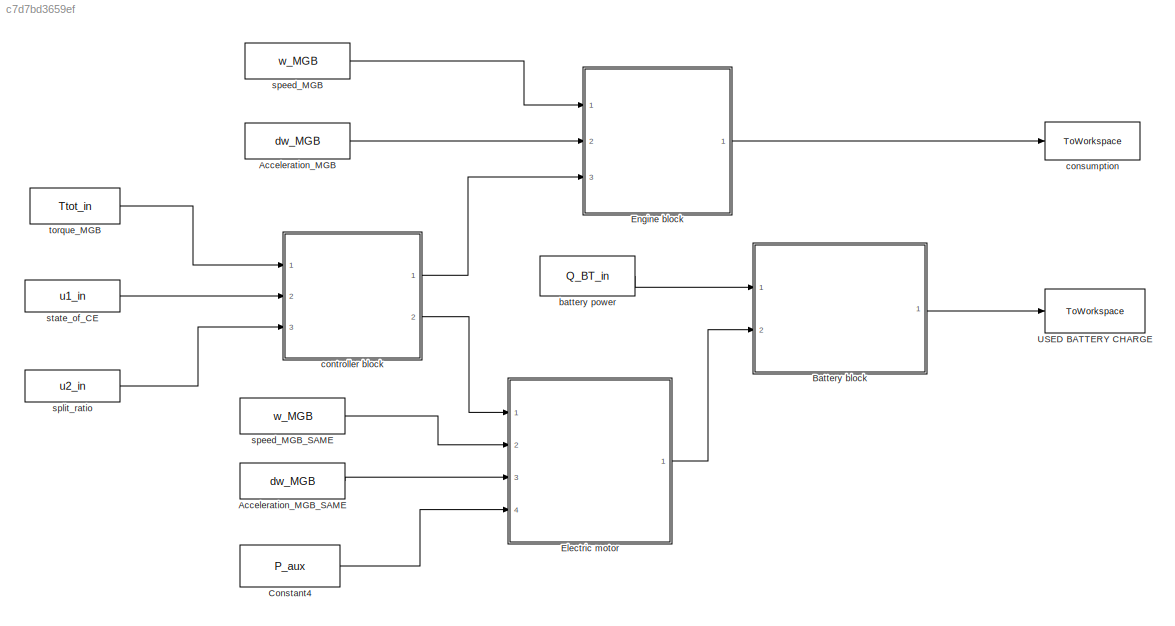
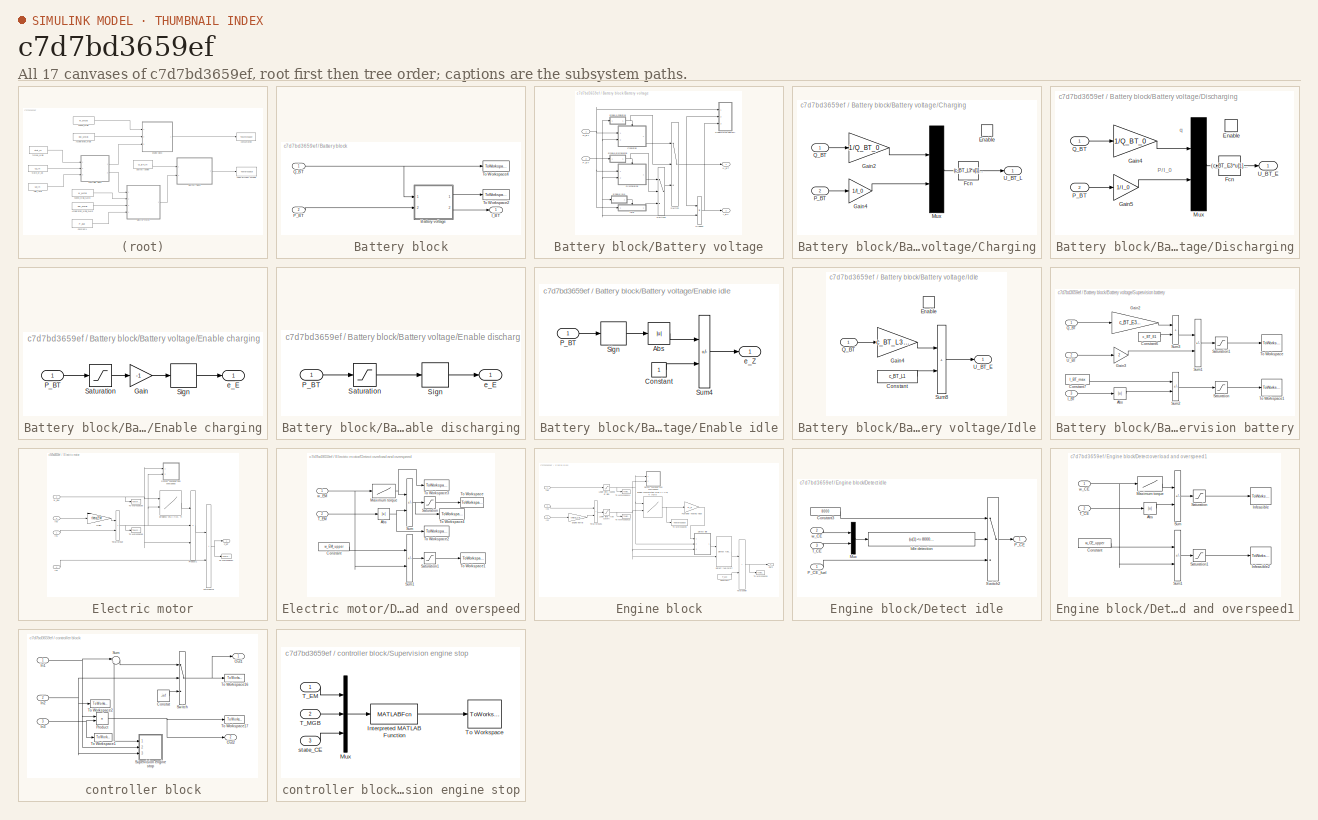
[diagram: thumbnail index - all 17 canvases of the model, root first then tree order]
MODEL slx_c7d7bd3659ef
KIND model
CONFIG AbsTol = auto
CONFIG EnableMultiTasking = off
CONFIG FixedStep = 1
CONFIG MaxStep = auto
CONFIG MinStep = auto
CONFIG RelTol = 1e-3
CONFIG SampleTimeConstraint = Unconstrained
CONFIG Solver = FixedStepAuto
CONFIG SolverName = FixedStepAuto
CONFIG StartTime = 0.0
CONFIG StopTime = 0
BLOCK [Constant] Acceleration_MGB
  Value = dw_MGB
BLOCK [Constant] Acceleration_MGB_SAME
  Value = dw_MGB
BLOCK [SubSystem] Battery block
  Ports = [2, 1]
  RequestExecContextInheritance = off
BLOCK [SubSystem] Battery block/Battery voltage
  AncestorBlock = qss_tb_library/Energy Buffer/Battery/Battery voltage
  Ports = [2, 2]
  RequestExecContextInheritance = off
BLOCK [SubSystem] Battery block/Battery voltage/Charging
  Ports = [2, 1, 1]
  RequestExecContextInheritance = off
BLOCK [EnablePort] Battery block/Battery voltage/Charging/Enable
  Ports = []
BLOCK [Fcn] Battery block/Battery voltage/Charging/Fcn
  Expr = (c_BT_L3*u[1]+c_BT_L1+sqrt((c_BT_L3*u[1]+c_BT_L1)^2+4*(c_BT_L4*u[1]+c_BT_L2)*(-u[2])))/2
BLOCK [Gain] Battery block/Battery voltage/Charging/Gain2
  Gain = 1/Q_BT_0
  NameLocation = top
  OutDataTypeStr = Inherit: Same as input
  ParamDataTypeStr = Inherit: Same as input
  SaturateOnIntegerOverflow = on
BLOCK [Gain] Battery block/Battery voltage/Charging/Gain4
  Gain = 1/I_0
  NameLocation = top
  OutDataTypeStr = Inherit: Same as input
  ParamDataTypeStr = Inherit: Same as input
  SaturateOnIntegerOverflow = on
BLOCK [Mux] Battery block/Battery voltage/Charging/Mux
  Inputs = 2
  Ports = [2, 1]
BLOCK [Inport] Battery block/Battery voltage/Charging/P_BT
  Port = 2
BLOCK [Inport] Battery block/Battery voltage/Charging/Q_BT
BLOCK [Outport] Battery block/Battery voltage/Charging/U_BT_L
  InitialOutput = 0
  VectorParamsAs1DForOutWhenUnconnected = off
BLOCK [SubSystem] Battery block/Battery voltage/Discharging
  Ports = [2, 1, 1]
  RequestExecContextInheritance = off
BLOCK [EnablePort] Battery block/Battery voltage/Discharging/Enable
  Ports = []
BLOCK [Fcn] Battery block/Battery voltage/Discharging/Fcn
  Expr = (c_BT_E3*u[1]+c_BT_E1+sqrt((c_BT_E3*u[1]+c_BT_E1)^2+4*(c_BT_E4*u[1]+c_BT_E2)*(-u[2])))/2
BLOCK [Gain] Battery block/Battery voltage/Discharging/Gain4
  Gain = 1/Q_BT_0
  NameLocation = top
  OutDataTypeStr = Inherit: Same as input
  ParamDataTypeStr = Inherit: Same as input
  SaturateOnIntegerOverflow = on
BLOCK [Gain] Battery block/Battery voltage/Discharging/Gain5
  Gain = 1/I_0
  NameLocation = top
  OutDataTypeStr = Inherit: Same as input
  ParamDataTypeStr = Inherit: Same as input
  SaturateOnIntegerOverflow = on
BLOCK [Mux] Battery block/Battery voltage/Discharging/Mux
  Inputs = 2
  Ports = [2, 1]
BLOCK [Inport] Battery block/Battery voltage/Discharging/P_BT
  Port = 2
BLOCK [Inport] Battery block/Battery voltage/Discharging/Q_BT
BLOCK [Outport] Battery block/Battery voltage/Discharging/U_BT_E
  InitialOutput = 0
  VectorParamsAs1DForOutWhenUnconnected = off
BLOCK [SubSystem] Battery block/Battery voltage/Enable charging
  NameLocation = top
  Ports = [1, 1]
  RequestExecContextInheritance = off
BLOCK [Gain] Battery block/Battery voltage/Enable charging/Gain
  Gain = -1
  OutDataTypeStr = Inherit: Same as input
  ParamDataTypeStr = Inherit: Same as input
  SaturateOnIntegerOverflow = on
BLOCK [Inport] Battery block/Battery voltage/Enable charging/P_BT
BLOCK [Saturate] Battery block/Battery voltage/Enable charging/Saturation
  LowerLimit = -inf
  NameLocation = top
  UpperLimit = 0
BLOCK [Signum] Battery block/Battery voltage/Enable charging/Sign
BLOCK [Outport] Battery block/Battery voltage/Enable charging/e_E
  InitialOutput = 0
  VectorParamsAs1DForOutWhenUnconnected = off
BLOCK [SubSystem] Battery block/Battery voltage/Enable discharging
  NameLocation = top
  Ports = [1, 1]
  RequestExecContextInheritance = off
BLOCK [Inport] Battery block/Battery voltage/Enable discharging/P_BT
BLOCK [Saturate] Battery block/Battery voltage/Enable discharging/Saturation
  LowerLimit = 0
  UpperLimit = inf
BLOCK [Signum] Battery block/Battery voltage/Enable discharging/Sign
BLOCK [Outport] Battery block/Battery voltage/Enable discharging/e_E
  InitialOutput = 0
  VectorParamsAs1DForOutWhenUnconnected = off
BLOCK [SubSystem] Battery block/Battery voltage/Enable idle
  NameLocation = top
  Ports = [1, 1]
  RequestExecContextInheritance = off
BLOCK [Abs] Battery block/Battery voltage/Enable idle/Abs
BLOCK [Constant] Battery block/Battery voltage/Enable idle/Constant
BLOCK [Inport] Battery block/Battery voltage/Enable idle/P_BT
BLOCK [Signum] Battery block/Battery voltage/Enable idle/Sign
BLOCK [Sum] Battery block/Battery voltage/Enable idle/Sum4
  IconShape = rectangular
  InputSameDT = on
  Inputs = -+
  OutDataTypeStr = Inherit: Same as first input
  Ports = [2, 1]
  SaturateOnIntegerOverflow = on
BLOCK [Outport] Battery block/Battery voltage/Enable idle/e_Z
  InitialOutput = 0
  VectorParamsAs1DForOutWhenUnconnected = off
BLOCK [Outport] Battery block/Battery voltage/I_BT
  InitialOutput = 0
  Port = 2
  VectorParamsAs1DForOutWhenUnconnected = off
BLOCK [SubSystem] Battery block/Battery voltage/Idle
  Ports = [1, 1, 1]
  RequestExecContextInheritance = off
BLOCK [Constant] Battery block/Battery voltage/Idle/Constant
  Value = c_BT_L1
BLOCK [EnablePort] Battery block/Battery voltage/Idle/Enable
  Ports = []
  StatesWhenEnabling = reset
BLOCK [Gain] Battery block/Battery voltage/Idle/Gain4
  Gain = c_BT_L3/Q_BT_0
  NameLocation = top
  OutDataTypeStr = Inherit: Same as input
  ParamDataTypeStr = Inherit: Same as input
  SaturateOnIntegerOverflow = on
BLOCK [Inport] Battery block/Battery voltage/Idle/Q_BT
BLOCK [Sum] Battery block/Battery voltage/Idle/Sum8
  IconShape = rectangular
  InputSameDT = on
  OutDataTypeStr = Inherit: Same as first input
  Ports = [2, 1]
  SaturateOnIntegerOverflow = on
BLOCK [Outport] Battery block/Battery voltage/Idle/U_BT_E
  InitialOutput = 0
  VectorParamsAs1DForOutWhenUnconnected = off
BLOCK [Inport] Battery block/Battery voltage/P_BT
  Port = 2
BLOCK [Product] Battery block/Battery voltage/Product
  InputSameDT = on
  Inputs = /*
  OutDataTypeStr = Inherit: Same as first input
  Ports = [2, 1]
  RndMeth = Zero
  SaturateOnIntegerOverflow = on
BLOCK [Inport] Battery block/Battery voltage/Q_BT
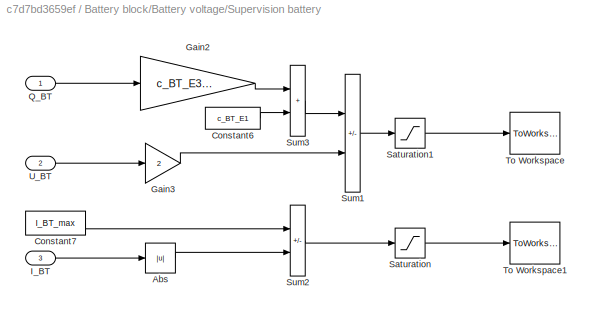
BLOCK [SubSystem] Battery block/Battery voltage/Supervision battery
  Ports = [3]
  RequestExecContextInheritance = off
BLOCK [Abs] Battery block/Battery voltage/Supervision battery/Abs
BLOCK [Constant] Battery block/Battery voltage/Supervision battery/Constant6
  Value = c_BT_E1
BLOCK [Constant] Battery block/Battery voltage/Supervision battery/Constant7
  Value = I_BT_max
BLOCK [Gain] Battery block/Battery voltage/Supervision battery/Gain2
  Gain = c_BT_E3/Q_BT_0
  NameLocation = top
  OutDataTypeStr = Inherit: Same as input
  ParamDataTypeStr = Inherit: Same as input
  SaturateOnIntegerOverflow = on
BLOCK [Gain] Battery block/Battery voltage/Supervision battery/Gain3
  Gain = 2
  NameLocation = top
  OutDataTypeStr = Inherit: Same as input
  ParamDataTypeStr = Inherit: Same as input
  SaturateOnIntegerOverflow = on
BLOCK [Inport] Battery block/Battery voltage/Supervision battery/I_BT
  Port = 3
BLOCK [Inport] Battery block/Battery voltage/Supervision battery/Q_BT
BLOCK [Saturate] Battery block/Battery voltage/Supervision battery/Saturation
  LowerLimit = -inf
  UpperLimit = 0
BLOCK [Saturate] Battery block/Battery voltage/Supervision battery/Saturation1
  LowerLimit = -inf
  UpperLimit = 0
BLOCK [Sum] Battery block/Battery voltage/Supervision battery/Sum1
  IconShape = rectangular
  InputSameDT = on
  Inputs = -+
  OutDataTypeStr = Inherit: Same as first input
  Ports = [2, 1]
  SaturateOnIntegerOverflow = on
BLOCK [Sum] Battery block/Battery voltage/Supervision battery/Sum2
  IconShape = rectangular
  InputSameDT = on
  Inputs = +-
  OutDataTypeStr = Inherit: Same as first input
  Ports = [2, 1]
  SaturateOnIntegerOverflow = on
BLOCK [Sum] Battery block/Battery voltage/Supervision battery/Sum3
  IconShape = rectangular
  InputSameDT = on
  OutDataTypeStr = Inherit: Same as first input
  Ports = [2, 1]
  SaturateOnIntegerOverflow = on
BLOCK [ToWorkspace] Battery block/Battery voltage/Supervision battery/To Workspace
  MaxDataPoints = inf
  Ports = [1]
  SampleTime = -1
  Save2DSignal = 2-D array (concatenate along first dimension)
  VariableName = I6
BLOCK [ToWorkspace] Battery block/Battery voltage/Supervision battery/To Workspace1
  MaxDataPoints = inf
  Ports = [1]
  SampleTime = -1
  Save2DSignal = 2-D array (concatenate along first dimension)
  VariableName = I7
BLOCK [Inport] Battery block/Battery voltage/Supervision battery/U_BT
  Port = 2
BLOCK [Switch] Battery block/Battery voltage/Switch
  Threshold = 0.5
BLOCK [Switch] Battery block/Battery voltage/Switch1
  Threshold = 0.5
BLOCK [Outport] Battery block/Battery voltage/U_BT
  InitialOutput = 0
  VectorParamsAs1DForOutWhenUnconnected = off
BLOCK [Outport] Battery block/I_BT
BLOCK [Inport] Battery block/P_BT
  Port = 2
BLOCK [Inport] Battery block/Q_BT
BLOCK [ToWorkspace] Battery block/To Workspace2
  MaxDataPoints = inf
  Ports = [1]
  SampleTime = -1
  VariableName = U_BT
BLOCK [ToWorkspace] Battery block/To Workspace4
  MaxDataPoints = inf
  Ports = [1]
  SampleTime = -1
  VariableName = Q_BT
BLOCK [Constant] Constant4
  Value = P_aux
BLOCK [SubSystem] Electric motor
  Ports = [4, 1]
  RequestExecContextInheritance = off
BLOCK [SubSystem] Electric motor/Detect overload and overspeed
  AncestorBlock = qss_tb_library/Energy Converter/Electric Motor\n(seminar)/Detect overload\nand overspeed
  Ports = [2]
  RequestExecContextInheritance = off
BLOCK [Abs] Electric motor/Detect overload and overspeed/Abs
BLOCK [Constant] Electric motor/Detect overload and overspeed/Constant
  Value = w_EM_upper
BLOCK [Lookup] Electric motor/Detect overload and overspeed/Maximum torque
  InputValues = w_EM_row
  Table = T_EM_max
BLOCK [Saturate] Electric motor/Detect overload and overspeed/Saturation
  LowerLimit = -inf
  UpperLimit = 0
BLOCK [Saturate] Electric motor/Detect overload and overspeed/Saturation1
  LowerLimit = -inf
  UpperLimit = 0
BLOCK [Sum] Electric motor/Detect overload and overspeed/Sum
  IconShape = rectangular
  InputSameDT = on
  Inputs = +-
  OutDataTypeStr = Inherit: Same as first input
  Ports = [2, 1]
  SaturateOnIntegerOverflow = on
BLOCK [Sum] Electric motor/Detect overload and overspeed/Sum1
  IconShape = rectangular
  InputSameDT = on
  Inputs = +-
  OutDataTypeStr = Inherit: Same as first input
  Ports = [2, 1]
  SaturateOnIntegerOverflow = on
BLOCK [Inport] Electric motor/Detect overload and overspeed/T_EM
  Port = 2
BLOCK [ToWorkspace] Electric motor/Detect overload and overspeed/To Workspace
  FixptAsFi = on
  MaxDataPoints = inf
  Ports = [1]
  SampleTime = -1
  VariableName = I4
BLOCK [ToWorkspace] Electric motor/Detect overload and overspeed/To Workspace1
  MaxDataPoints = inf
  Ports = [1]
  SampleTime = -1
  Save2DSignal = 2-D array (concatenate along first dimension)
  VariableName = I5
BLOCK [ToWorkspace] Electric motor/Detect overload and overspeed/To Workspace2
  MaxDataPoints = inf
  Ports = [1]
  SampleTime = -1
  Save2DSignal = 2-D array (concatenate along first dimension)
  VariableName = a2
BLOCK [ToWorkspace] Electric motor/Detect overload and overspeed/To Workspace3
  MaxDataPoints = inf
  Ports = [1]
  SampleTime = -1
  Save2DSignal = 2-D array (concatenate along first dimension)
  VariableName = a1
BLOCK [ToWorkspace] Electric motor/Detect overload and overspeed/To Workspace4
  MaxDataPoints = inf
  Ports = [1]
  SampleTime = -1
  Save2DSignal = 2-D array (concatenate along first dimension)
  VariableName = a3
BLOCK [Inport] Electric motor/Detect overload and overspeed/w_EM
BLOCK [Lookup2D] Electric motor/Efficiency eta = f(w, T)
  ColumnIndex = T_EM_col
  InputSameDT = off
  RowIndex = w_EM_row
  SaturateOnIntegerOverflow = off
  Table = eta_EM_map
BLOCK [Gain] Electric motor/Gain1
  Gain = theta_EM
  OutDataTypeStr = Inherit: Same as input
  ParamDataTypeStr = Inherit: Same as input
  SaturateOnIntegerOverflow = on
BLOCK [Inport] Electric motor/In1
BLOCK [Inport] Electric motor/In3
  Port = 3
BLOCK [Inport] Electric motor/In4
  Port = 4
BLOCK [Outport] Electric motor/P_BT
BLOCK [Product] Electric motor/Product1
  InputSameDT = on
  Inputs = 3
  OutDataTypeStr = Inherit: Same as first input
  Ports = [3, 1]
  RndMeth = Zero
  SaturateOnIntegerOverflow = on
BLOCK [ToWorkspace] Electric motor/To Workspace5
  MaxDataPoints = inf
  NameLocation = top
  Ports = [1]
  SampleTime = -1
  VariableName = w_EM
BLOCK [ToWorkspace] Electric motor/To Workspace6
  MaxDataPoints = inf
  NameLocation = top
  Ports = [1]
  SampleTime = -1
  VariableName = T_EM
BLOCK [ToWorkspace] Electric motor/To Workspace7
  MaxDataPoints = inf
  NameLocation = top
  Ports = [1]
  SampleTime = -1
  VariableName = Pm_out
BLOCK [Sum] Electric motor/Total power
  IconShape = rectangular
  InputSameDT = on
  OutDataTypeStr = Inherit: Same as first input
  Ports = [2, 1]
  SaturateOnIntegerOverflow = on
BLOCK [Sum] Electric motor/Total torque
  IconShape = rectangular
  InputSameDT = on
  OutDataTypeStr = Inherit: Same as first input
  Ports = [2, 1]
  SaturateOnIntegerOverflow = on
BLOCK [Inport] Electric motor/w_EM
  Port = 2
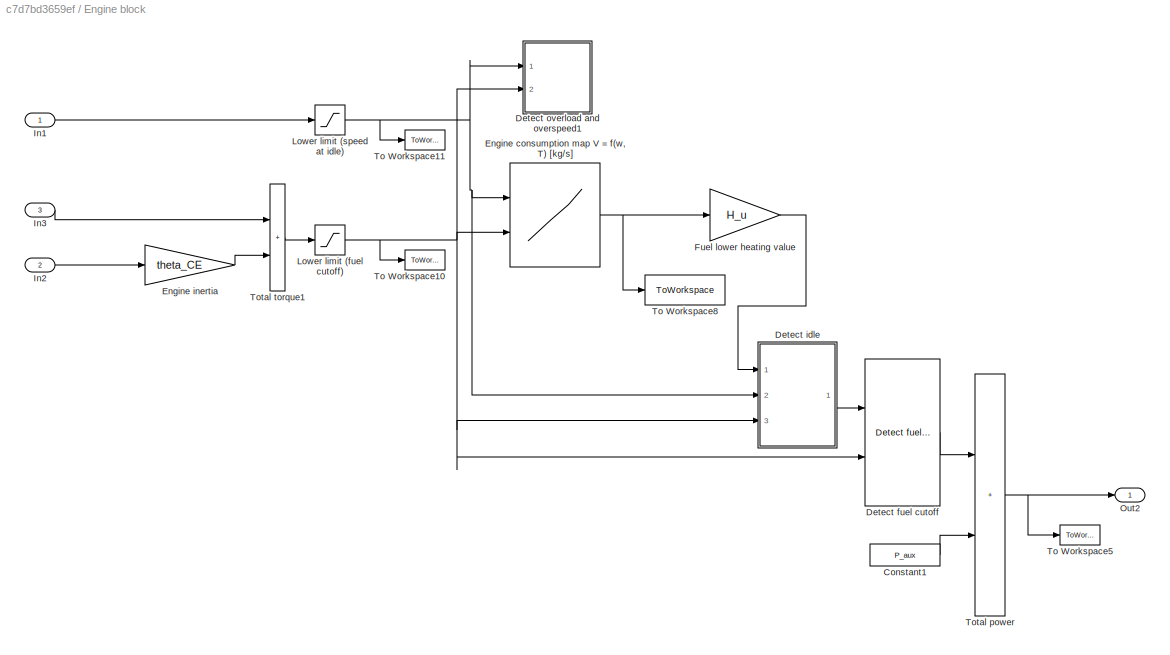
BLOCK [SubSystem] Engine block
  Ports = [3, 1]
  RequestExecContextInheritance = off
BLOCK [Constant] Engine block/Constant1
  Value = P_aux
BLOCK [Reference] Engine block/Detect fuel cutoff  REF=qss_tb_library/Energy Converter/Combustion Engine  (lib defined in mdl_a75e96b0ff2a, mdl_aad2a3137e65)
(consumption map)/Detect fuel cutoff
  Ports = [2, 1]
  SourceBlock = qss_tb_library/Energy Converter/Combustion Engine\n(consumption map)/Detect fuel cutoff
  SourceType = SubSystem
BLOCK [SubSystem] Engine block/Detect idle
  AncestorBlock = qss_tb_library/Energy Converter/Combustion Engine\n(consumption map)/Detect idle
  Ports = [3, 1]
  RequestExecContextInheritance = off
BLOCK [Constant] Engine block/Detect idle/Constant3
  Value = 8000
BLOCK [Fcn] Engine block/Detect idle/Idle detection
  Expr = (u(1) <= 8000) * (u(2) <= 5)
BLOCK [Mux] Engine block/Detect idle/Mux
  DisplayOption = bar
  Inputs = 2
  Ports = [2, 1]
BLOCK [Outport] Engine block/Detect idle/P_CE
  InitialOutput = 0
BLOCK [Inport] Engine block/Detect idle/P_CE_fuel
BLOCK [Switch] Engine block/Detect idle/Switch2
  Threshold = 0.5
BLOCK [Inport] Engine block/Detect idle/T_CE
  Port = 3
BLOCK [Inport] Engine block/Detect idle/w_CE
  Port = 2
BLOCK [SubSystem] Engine block/Detect overload and overspeed1
  AncestorBlock = qss_tb_library/Energy Converter/Combustion Engine\n(consumption map)/Detect overload\nand overspeed
  Ports = [2]
  RequestExecContextInheritance = off
BLOCK [Abs] Engine block/Detect overload and overspeed1/Abs
BLOCK [Constant] Engine block/Detect overload and overspeed1/Constant
  Value = w_CE_upper
BLOCK [ToWorkspace] Engine block/Detect overload and overspeed1/Infeasible
  MaxDataPoints = inf
  Ports = [1]
  SampleTime = -1
  VariableName = I2
BLOCK [ToWorkspace] Engine block/Detect overload and overspeed1/Infeasible2
  MaxDataPoints = inf
  Ports = [1]
  SampleTime = -1
  VariableName = I3
BLOCK [Lookup] Engine block/Detect overload and overspeed1/Maximum torque
  InputValues = w_CE_max
  Table = T_CE_max
BLOCK [Saturate] Engine block/Detect overload and overspeed1/Saturation
  LowerLimit = -inf
  UpperLimit = 0
BLOCK [Saturate] Engine block/Detect overload and overspeed1/Saturation1
  LowerLimit = -inf
  UpperLimit = 0
BLOCK [Sum] Engine block/Detect overload and overspeed1/Sum
  IconShape = rectangular
  InputSameDT = on
  Inputs = +-
  OutDataTypeStr = Inherit: Same as first input
  Ports = [2, 1]
  SaturateOnIntegerOverflow = on
BLOCK [Sum] Engine block/Detect overload and overspeed1/Sum1
  IconShape = rectangular
  InputSameDT = on
  Inputs = +-
  OutDataTypeStr = Inherit: Same as first input
  Ports = [2, 1]
  SaturateOnIntegerOverflow = on
BLOCK [Inport] Engine block/Detect overload and overspeed1/T_CE
  Port = 2
BLOCK [Inport] Engine block/Detect overload and overspeed1/w_CE
BLOCK [Lookup2D] Engine block/Engine consumption map V = f(w, T) [kg//s]
  ColumnIndex = T_CE_col
  InputSameDT = off
  RowIndex = w_CE_row
  SaturateOnIntegerOverflow = off
  Table = V_CE_map
BLOCK [Gain] Engine block/Engine inertia
  Gain = theta_CE
  OutDataTypeStr = Inherit: Same as input
  ParamDataTypeStr = Inherit: Same as input
  SaturateOnIntegerOverflow = on
BLOCK [Gain] Engine block/Fuel lower heating value
  Gain = H_u
  OutDataTypeStr = Inherit: Same as input
  ParamDataTypeStr = Inherit: Same as input
  SaturateOnIntegerOverflow = on
BLOCK [Inport] Engine block/In1
BLOCK [Inport] Engine block/In2
  Port = 2
BLOCK [Inport] Engine block/In3
  Port = 3
BLOCK [Saturate] Engine block/Lower limit (fuel cutoff)
  LowerLimit = T_CE_cutoff
  UpperLimit = inf
BLOCK [Saturate] Engine block/Lower limit (speed at idle)
  LowerLimit = w_CE_idle
  UpperLimit = inf
BLOCK [Outport] Engine block/Out2
BLOCK [ToWorkspace] Engine block/To Workspace10
  MaxDataPoints = inf
  NameLocation = top
  Ports = [1]
  SampleTime = -1
  VariableName = T_CE
BLOCK [ToWorkspace] Engine block/To Workspace11
  MaxDataPoints = inf
  Ports = [1]
  SampleTime = -1
  VariableName = w_CE
BLOCK [ToWorkspace] Engine block/To Workspace5
  MaxDataPoints = inf
  NameLocation = top
  Ports = [1]
  SampleTime = -1
  VariableName = P_CE
BLOCK [ToWorkspace] Engine block/To Workspace8
  FixptAsFi = on
  MaxDataPoints = inf
  Ports = [1]
  SampleTime = -1
  VariableName = m_dot_fuel_out
BLOCK [Sum] Engine block/Total power
  IconShape = rectangular
  InputSameDT = on
  OutDataTypeStr = Inherit: Same as first input
  Ports = [2, 1]
  SaturateOnIntegerOverflow = on
BLOCK [Sum] Engine block/Total torque1
  IconShape = rectangular
  InputSameDT = on
  OutDataTypeStr = Inherit: Same as first input
  Ports = [2, 1]
  SaturateOnIntegerOverflow = on
BLOCK [ToWorkspace] USED BATTERY CHARGE
  MaxDataPoints = inf
  Ports = [1]
  SampleTime = -1
  VariableName = I_BT
BLOCK [Constant] battery power
  SampleTime = -1
  Value = Q_BT_in
BLOCK [ToWorkspace] consumption
  MaxDataPoints = inf
  Ports = [1]
  SampleTime = -1
  VariableName = Pe_out
BLOCK [SubSystem] controller block
  Ports = [3, 2]
  RequestExecContextInheritance = off
BLOCK [Constant] controller block/Constat
  Value = -inf
BLOCK [Inport] controller block/In1
BLOCK [Inport] controller block/In2
  Port = 2
BLOCK [Inport] controller block/In3
  Port = 3
BLOCK [Outport] controller block/Out1
BLOCK [Outport] controller block/Out2
  Port = 2
BLOCK [Product] controller block/Product
  Ports = [2, 1]
  RndMeth = Zero
BLOCK [Sum] controller block/Sum
  Inputs = |+-
  Ports = [2, 1]
BLOCK [SubSystem] controller block/Supervision engine stop
  Ports = [3]
  RequestExecContextInheritance = off
BLOCK [MATLABFcn] controller block/Supervision engine stop/Interpreted MATLAB Function
  MATLABFcn = supervision_engine_stop
  Ports = [1, 1]
BLOCK [Mux] controller block/Supervision engine stop/Mux
  DisplayOption = bar
  Inputs = 3
  Ports = [3, 1]
BLOCK [Inport] controller block/Supervision engine stop/T_EM
BLOCK [Inport] controller block/Supervision engine stop/T_MGB
  Port = 2
BLOCK [ToWorkspace] controller block/Supervision engine stop/To Workspace
  MaxDataPoints = inf
  Ports = [1]
  SampleTime = -1
  Save2DSignal = 2-D array (concatenate along first dimension)
  VariableName = I1
BLOCK [Inport] controller block/Supervision engine stop/state_CE
  Port = 3
BLOCK [Switch] controller block/Switch
  InputSameDT = off
  SaturateOnIntegerOverflow = off
  Threshold = 0.5
BLOCK [ToWorkspace] controller block/To Workspace1
  MaxDataPoints = inf
  NameLocation = top
  Ports = [1]
  SampleTime = -1
  VariableName = u
BLOCK [ToWorkspace] controller block/To Workspace16
  MaxDataPoints = inf
  NameLocation = top
  Ports = [1]
  SampleTime = -1
  VariableName = Te_out
BLOCK [ToWorkspace] controller block/To Workspace17
  MaxDataPoints = inf
  NameLocation = top
  Ports = [1]
  SampleTime = -1
  VariableName = Tm_out
BLOCK [ToWorkspace] controller block/To Workspace2
  MaxDataPoints = inf
  NameLocation = top
  Ports = [1]
  SampleTime = -1
  VariableName = state_CE
BLOCK [Constant] speed_MGB
  Value = w_MGB
BLOCK [Constant] speed_MGB_SAME
  Value = w_MGB
BLOCK [Constant] split_ratio
  Value = u2_in
BLOCK [Constant] state_of_CE
  SampleTime = -1
  Value = u1_in
BLOCK [Constant] torque_MGB
  SampleTime = -1
  Value = Ttot_in
ANNOTATION Battery block/Battery voltage/Discharging: P/I_0
ANNOTATION Battery block/Battery voltage/Discharging: q
LINE Acceleration_MGB:1 -> Engine block:2
LINE Acceleration_MGB_SAME:1 -> Electric motor:3
LINE Battery block/Battery voltage:1 -> Battery block/To Workspace2:1
LINE Battery block/Battery voltage:2 -> Battery block/I_BT:1
LINE Battery block/P_BT:1 -> Battery block/Battery voltage:2
NET Battery block/Q_BT:1 -> Battery block/Battery voltage:1, Battery block/To Workspace4:1
LINE Battery block:1 -> USED BATTERY CHARGE:1
LINE Constant4:1 -> Electric motor:4
LINE Electric motor/Efficiency eta = f(w, T):1 -> Electric motor/Product1:1
LINE Electric motor/Gain1:1 -> Electric motor/Total torque:1
LINE Electric motor/In1:1 -> Electric motor/Total torque:2
LINE Electric motor/In3:1 -> Electric motor/Gain1:1
LINE Electric motor/In4:1 -> Electric motor/Total power:2
LINE Electric motor/Product1:1 -> Electric motor/Total power:1
NET Electric motor/Total power:1 -> Electric motor/P_BT:1, Electric motor/To Workspace7:1
NET Electric motor/Total torque:1 -> Electric motor/Detect overload and overspeed:2, Electric motor/Efficiency eta = f(w, T):2, Electric motor/Product1:2, Electric motor/To Workspace6:1
NET Electric motor/w_EM:1 -> Electric motor/Detect overload and overspeed:1, Electric motor/Efficiency eta = f(w, T):1, Electric motor/Product1:3, Electric motor/To Workspace5:1
LINE Electric motor:1 -> Battery block:2
LINE Engine block/Constant1:1 -> Engine block/Total power:2
LINE Engine block/Detect fuel cutoff:1 -> Engine block/Total power:1
LINE Engine block/Detect idle:1 -> Engine block/Detect fuel cutoff:1
NET Engine block/Engine consumption map V = f(w, T) [kg//s]:1 -> Engine block/Fuel lower heating value:1, Engine block/To Workspace8:1
LINE Engine block/Engine inertia:1 -> Engine block/Total torque1:2
LINE Engine block/Fuel lower heating value:1 -> Engine block/Detect idle:1
LINE Engine block/In1:1 -> Engine block/Lower limit (speed at idle):1
LINE Engine block/In2:1 -> Engine block/Engine inertia:1
LINE Engine block/In3:1 -> Engine block/Total torque1:1
NET Engine block/Lower limit (fuel cutoff):1 -> Engine block/Detect fuel cutoff:2, Engine block/Detect idle:3, Engine block/Detect overload and overspeed1:2, Engine block/Engine consumption map V = f(w, T) [kg//s]:2, Engine block/To Workspace10:1
NET Engine block/Lower limit (speed at idle):1 -> Engine block/Detect idle:2, Engine block/Detect overload and overspeed1:1, Engine block/Engine consumption map V = f(w, T) [kg//s]:1, Engine block/To Workspace11:1
NET Engine block/Total power:1 -> Engine block/Out2:1, Engine block/To Workspace5:1
LINE Engine block/Total torque1:1 -> Engine block/Lower limit (fuel cutoff):1
LINE Engine block:1 -> consumption:1
LINE battery power:1 -> Battery block:1
LINE controller block/Constat:1 -> controller block/Switch:3
NET controller block/In1:1 -> controller block/Product:1, controller block/Sum:1, controller block/Supervision engine stop:2
NET controller block/In2:1 -> controller block/Supervision engine stop:3, controller block/Switch:2, controller block/To Workspace2:1
NET controller block/In3:1 -> controller block/Product:2, controller block/To Workspace1:1
NET controller block/Product:1 -> controller block/Out2:1, controller block/Sum:2, controller block/Supervision engine stop:1, controller block/To Workspace17:1
LINE controller block/Sum:1 -> controller block/Switch:1
LINE controller block/Supervision engine stop/Interpreted MATLAB Function:1 -> controller block/Supervision engine stop/To Workspace:1
LINE controller block/Supervision engine stop/Mux:1 -> controller block/Supervision engine stop/Interpreted MATLAB Function:1
LINE controller block/Supervision engine stop/T_EM:1 -> controller block/Supervision engine stop/Mux:1
LINE controller block/Supervision engine stop/T_MGB:1 -> controller block/Supervision engine stop/Mux:2
LINE controller block/Supervision engine stop/state_CE:1 -> controller block/Supervision engine stop/Mux:3
NET controller block/Switch:1 -> controller block/Out1:1, controller block/To Workspace16:1
LINE controller block:1 -> Engine block:3
LINE controller block:2 -> Electric motor:1
LINE speed_MGB:1 -> Engine block:1
LINE speed_MGB_SAME:1 -> Electric motor:2
LINE split_ratio:1 -> controller block:3
LINE state_of_CE:1 -> controller block:2
LINE torque_MGB:1 -> controller block:1
note: NET lines group one-source signal fan-out (src -> all destinations, sorted); 1:1 wires keep LINE
